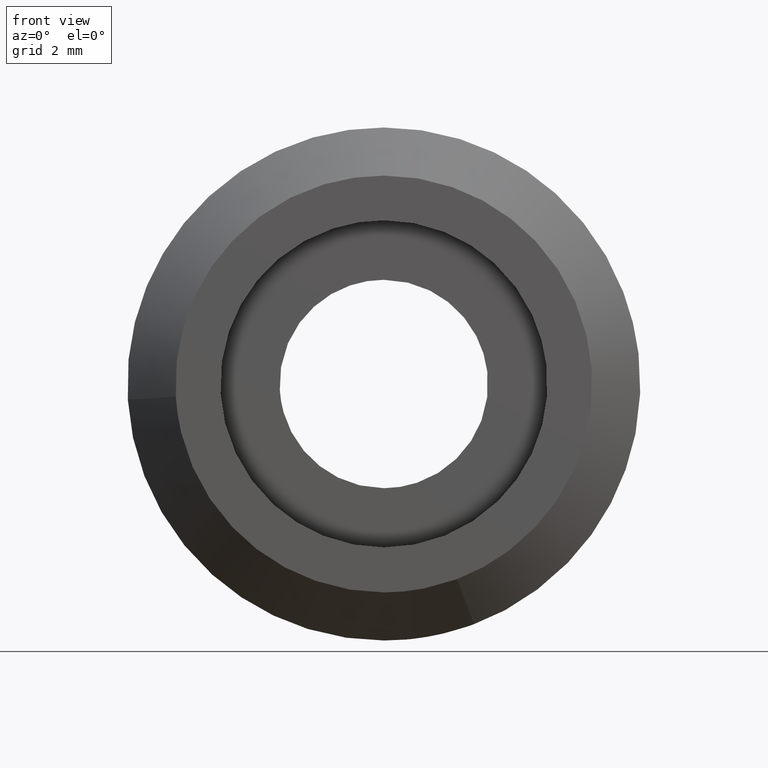
[diagram: clean part render]
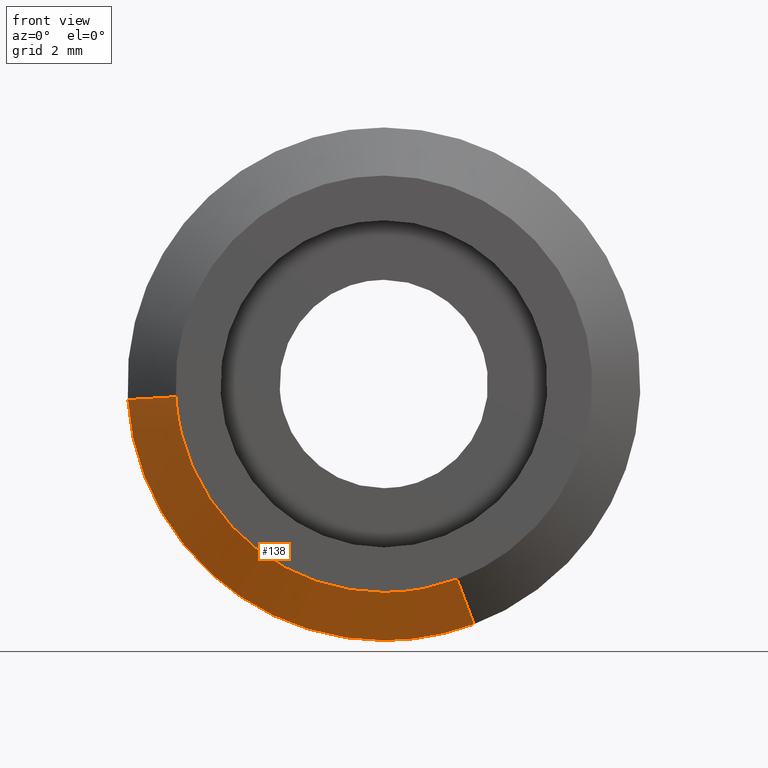
[diagram: same view with one face highlighted and labeled with its STEP entity id]
A machine part, front view. The second image highlights one B-rep face of the part: STEP entity #138.
In plain terms, the highlighted face is a freeform B-spline surface patch.
Its self-contained STEP definition (entity closure, byte-faithful):
#44=CARTESIAN_POINT('',(2.272331159505534,-1.537500000000001,-6.049827877844145));
#45=CARTESIAN_POINT('',(1.363519331710825,-1.537500000000001,-6.391179975147284));
#46=CARTESIAN_POINT('',(0.394526186744013,-1.537500000000000,-6.450446134801312));
#47=CARTESIAN_POINT('',(-6.055919948057299,-1.537500000000000,-6.844972321545325));
#48=CARTESIAN_POINT('',(-6.450446134801312,-1.537500000000000,-0.394526186744013));
#49=CARTESIAN_POINT('',(2.826459111023253,0.038437500000000,-7.525131649022485));
#50=CARTESIAN_POINT('',(1.696025520773577,0.038437500000000,-7.949725459415552));
#51=CARTESIAN_POINT('',(0.490734869517227,0.038437500000000,-8.023444193689274));
#52=CARTESIAN_POINT('',(-7.532709324172047,0.038437500000000,-8.514179063206502));
#53=CARTESIAN_POINT('',(-8.023444193689274,0.038437500000000,-0.490734869517227));
#61=(BOUNDED_SURFACE()B_SPLINE_SURFACE(2,1,((#44,#49),(#45,#50),(#46,#51),(#47,#52),(#48,#53)),.UNSPECIFIED.,.F.,.F.,.U.)B_SPLINE_SURFACE_WITH_KNOTS((3,2,3),(2,2),(0.0,2.663703866230780,15.982223197384680),(0.0,2.228712185952351),.UNSPECIFIED.)GEOMETRIC_REPRESENTATION_ITEM()RATIONAL_B_SPLINE_SURFACE(((0.906274169979695,0.906274169979695),(0.941421356237309,0.941421356237309),(1.0,1.0),(0.707106781186548,0.707106781186548),(1.0,1.0)))REPRESENTATION_ITEM('')SURFACE());
#62=CARTESIAN_POINT('',(2.812943795141329,8.550710E-013,-7.489148630210885));
#63=VERTEX_POINT('',#62);
#64=CARTESIAN_POINT('',(0.0,0.0,-8.0));
#65=VERTEX_POINT('',#64);
#66=CARTESIAN_POINT('',(2.812943795141329,8.550710E-013,-7.489148630210886));
#67=CARTESIAN_POINT('',(1.452859088543410,0.0,-8.0));
#68=CARTESIAN_POINT('',(0.0,0.0,-8.0));
#76=(BOUNDED_CURVE()B_SPLINE_CURVE(2,(#66,#67,#68),.UNSPECIFIED.,.F.,.U.)B_SPLINE_CURVE_WITH_KNOTS((3,3),(0.440284170898553,0.500000000000000),.UNSPECIFIED.)CURVE()GEOMETRIC_REPRESENTATION_ITEM()RATIONAL_B_SPLINE_CURVE((0.893499554635329,0.930038554401453,1.0))REPRESENTATION_ITEM(''));
#77=EDGE_CURVE('',#63,#65,#76,.T.);
#78=ORIENTED_EDGE('',*,*,#77,.F.);
#79=CARTESIAN_POINT('',(2.285516833554305,-1.499999999999113,-6.084933262045807));
#80=VERTEX_POINT('',#79);
#81=CARTESIAN_POINT('',(2.285516833554305,-1.499999999999113,-6.084933262045807));
#82=CARTESIAN_POINT('',(2.812943795141329,8.550710E-013,-7.489148630210885));
#83=QUASI_UNIFORM_CURVE('',1,(#81,#82),.UNSPECIFIED.,.F.,.U.);
#84=EDGE_CURVE('',#80,#63,#83,.T.);
#85=ORIENTED_EDGE('',*,*,#84,.F.);
#86=CARTESIAN_POINT('',(0.0,-1.500000000000000,-6.500000000000000));
#87=VERTEX_POINT('',#86);
#88=CARTESIAN_POINT('',(2.285516833554305,-1.499999999999113,-6.084933262045807));
#89=CARTESIAN_POINT('',(1.180448009443627,-1.500000000000000,-6.500000000000000));
#90=CARTESIAN_POINT('',(0.0,-1.500000000000000,-6.500000000000000));
#98=(BOUNDED_CURVE()B_SPLINE_CURVE(2,(#88,#89,#90),.UNSPECIFIED.,.F.,.U.)B_SPLINE_CURVE_WITH_KNOTS((3,3),(0.440284170898454,0.500000000000000),.UNSPECIFIED.)CURVE()GEOMETRIC_REPRESENTATION_ITEM()RATIONAL_B_SPLINE_CURVE((0.893499554635208,0.930038554401337,1.0))REPRESENTATION_ITEM(''));
#99=EDGE_CURVE('',#80,#87,#98,.T.);
#100=ORIENTED_EDGE('',*,*,#99,.T.);
#101=CARTESIAN_POINT('',(-6.487876189742202,-1.499999999999874,-0.396815506977523));
#102=VERTEX_POINT('',#101);
#103=CARTESIAN_POINT('',(0.0,-1.500000000000000,-6.500000000000000));
#104=CARTESIAN_POINT('',(-6.114589434885240,-1.500000000000001,-6.500000000000001));
#105=CARTESIAN_POINT('',(-6.487876189742202,-1.499999999999874,-0.396815506977523));
#113=(BOUNDED_CURVE()B_SPLINE_CURVE(2,(#103,#104,#105),.UNSPECIFIED.,.F.,.U.)B_SPLINE_CURVE_WITH_KNOTS((3,3),(0.500000000000000,0.739332962241918),.UNSPECIFIED.)CURVE()GEOMETRIC_REPRESENTATION_ITEM()RATIONAL_B_SPLINE_CURVE((1.0,0.719603993283224,0.976072041673094))REPRESENTATION_ITEM(''));
#114=EDGE_CURVE('',#87,#102,#113,.T.);
#115=ORIENTED_EDGE('',*,*,#114,.T.);
#116=CARTESIAN_POINT('',(-7.985078472751683,-1.985229E-009,-0.488386887853882));
#117=VERTEX_POINT('',#116);
#118=CARTESIAN_POINT('',(-6.487876189742202,-1.499999999999874,-0.396815506977523));
#119=CARTESIAN_POINT('',(-7.985078472751683,-1.985229E-009,-0.488386887853882));
#120=QUASI_UNIFORM_CURVE('',1,(#118,#119),.UNSPECIFIED.,.F.,.U.);
#121=EDGE_CURVE('',#102,#117,#120,.T.);
#122=ORIENTED_EDGE('',*,*,#121,.T.);
#123=CARTESIAN_POINT('',(0.0,0.0,-8.0));
#124=CARTESIAN_POINT('',(-7.525649883885951,0.0,-8.0));
#125=CARTESIAN_POINT('',(-7.985078472751683,-1.985229E-009,-0.488386887853882));
#133=(BOUNDED_CURVE()B_SPLINE_CURVE(2,(#123,#124,#125),.UNSPECIFIED.,.F.,.U.)B_SPLINE_CURVE_WITH_KNOTS((3,3),(0.500000000000000,0.739332993105690),.UNSPECIFIED.)CURVE()GEOMETRIC_REPRESENTATION_ITEM()RATIONAL_B_SPLINE_CURVE((1.0,0.719603957124067,0.976072107820041))REPRESENTATION_ITEM(''));
#134=EDGE_CURVE('',#65,#117,#133,.T.);
#135=ORIENTED_EDGE('',*,*,#134,.F.);
#136=EDGE_LOOP('',(#78,#85,#100,#115,#122,#135));
#137=FACE_OUTER_BOUND('',#136,.T.);
#138=ADVANCED_FACE('',(#137),#61,.T.);